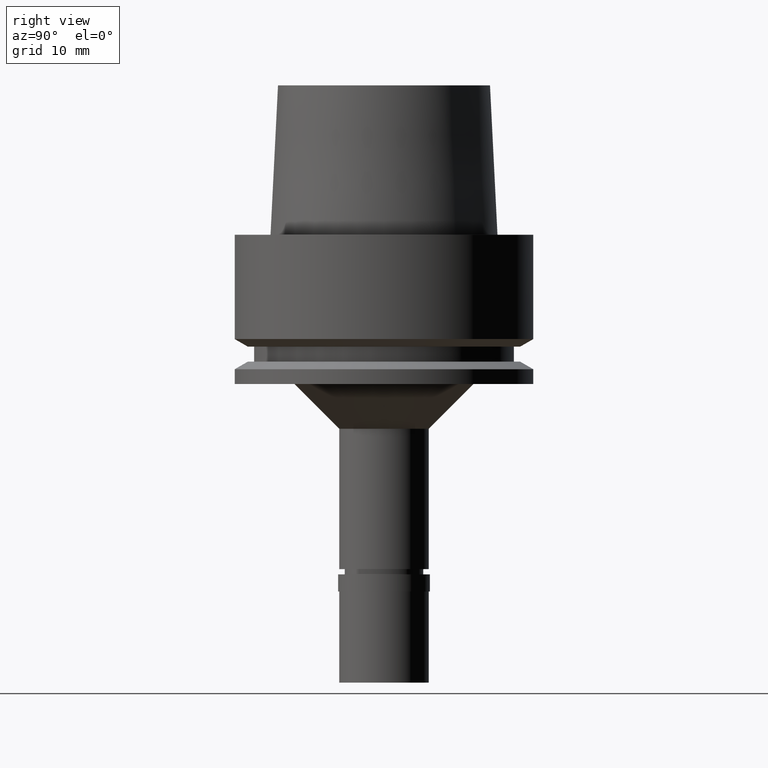
[diagram: clean part render]
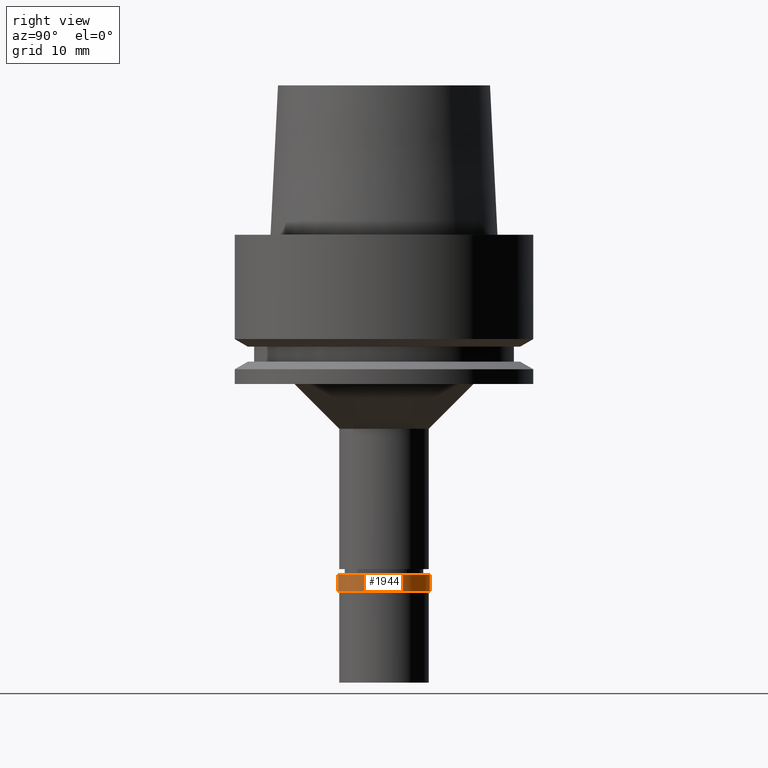
[diagram: same view with one face highlighted and labeled with its STEP entity id]
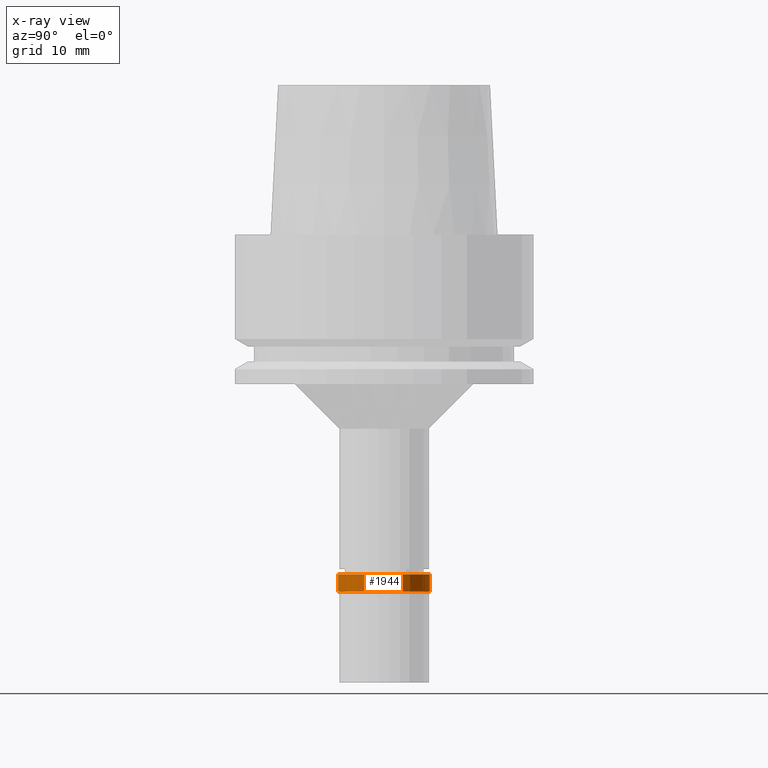
[diagram: x-ray of the same camera — body ghosted, the highlighted face saturated]
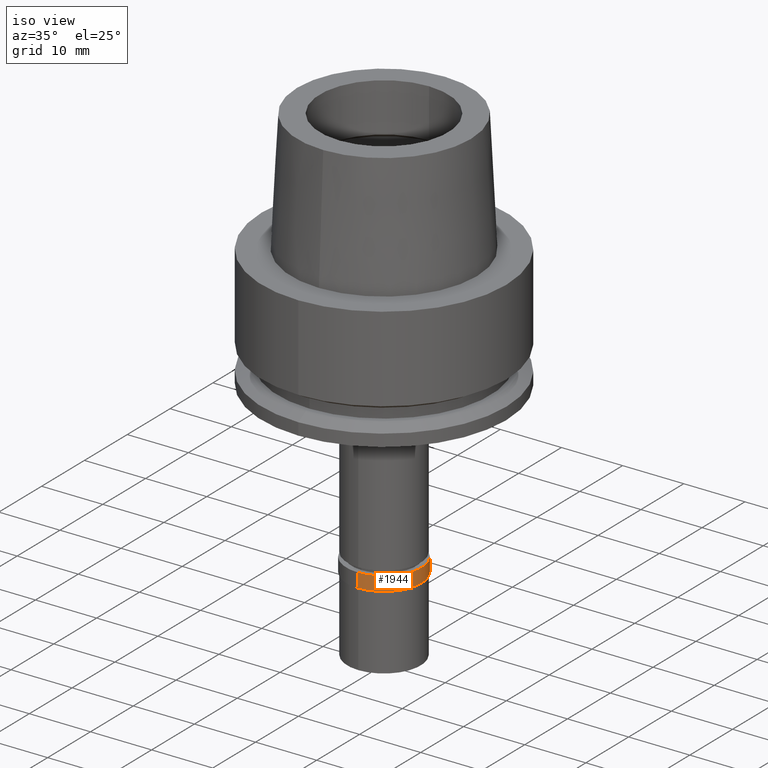
[diagram: same view with one face highlighted and labeled with its STEP entity id]
A machine part, right view. The second image highlights one B-rep face of the part: STEP entity #1944.
The next image is the same camera in x-ray: the body ghosted, the highlighted face saturated — about 0% of this face is hidden behind the body in this view.
A second angle (iso view) of the same face is appended — the face is thin or edge-on in the first view.
In plain terms, the highlighted cylindrical surface (partial cylindrical patch) has radius 6.15 mm, axis along (0, 0, 1).
Its self-contained STEP definition (entity closure, byte-faithful):
#38 = CARTESIAN_POINT ( 'NONE',  ( 0.0000000000000000000, 0.0000000000000000000, -2.299999999999999822 ) ) ;
#83 = ORIENTED_EDGE ( 'NONE', *, *, #1371, .T. ) ;
#102 = VECTOR ( 'NONE', #2620, 1000.000000000000000 ) ;
#126 = LINE ( 'NONE', #762, #102 ) ;
#191 = CARTESIAN_POINT ( 'NONE',  ( 0.0000000000000000000, -6.150000000000000355, 1.953992523340000041E-14 ) ) ;
#250 = ORIENTED_EDGE ( 'NONE', *, *, #2046, .F. ) ;
#310 = CARTESIAN_POINT ( 'NONE',  ( 0.0000000000000000000, 0.0000000000000000000, 1.953992523340000041E-14 ) ) ;
#335 = CIRCLE ( 'NONE', #670, 6.150000000000000355 ) ;
#361 = AXIS2_PLACEMENT_3D ( 'NONE', #38, #2341, #671 ) ;
#387 = FACE_OUTER_BOUND ( 'NONE', #2639, .T. ) ;
#545 = DIRECTION ( 'NONE',  ( 0.0000000000000000000, 0.0000000000000000000, 1.000000000000000000 ) ) ;
#560 = DIRECTION ( 'NONE',  ( 0.0000000000000000000, 1.000000000000000000, 0.0000000000000000000 ) ) ;
#615 = VECTOR ( 'NONE', #1459, 1000.000000000000000 ) ;
#670 = AXIS2_PLACEMENT_3D ( 'NONE', #310, #1468, #1056 ) ;
#671 = DIRECTION ( 'NONE',  ( 0.0000000000000000000, -1.000000000000000000, 0.0000000000000000000 ) ) ;
#704 = ORIENTED_EDGE ( 'NONE', *, *, #1236, .T. ) ;
#762 = CARTESIAN_POINT ( 'NONE',  ( 0.0000000000000000000, -6.150000000000000355, 0.0000000000000000000 ) ) ;
#769 = CARTESIAN_POINT ( 'NONE',  ( 0.0000000000000000000, -6.150000000000000355, -2.299999999999999822 ) ) ;
#964 = CYLINDRICAL_SURFACE ( 'NONE', #1531, 6.150000000000000355 ) ;
#1047 = CARTESIAN_POINT ( 'NONE',  ( 0.0000000000000000000, 6.150000000000000355, -2.299999999999999822 ) ) ;
#1056 = DIRECTION ( 'NONE',  ( 0.0000000000000000000, 1.000000000000000000, 0.0000000000000000000 ) ) ;
#1086 = CARTESIAN_POINT ( 'NONE',  ( 0.0000000000000000000, 6.150000000000000355, 0.0000000000000000000 ) ) ;
#1183 = CARTESIAN_POINT ( 'NONE',  ( 0.0000000000000000000, 0.0000000000000000000, -15.22500000000000142 ) ) ;
#1236 = EDGE_CURVE ( 'NONE', #2364, #2380, #126, .T. ) ;
#1371 = EDGE_CURVE ( 'NONE', #2481, #2364, #335, .T. ) ;
#1407 = CIRCLE ( 'NONE', #361, 6.150000000000000355 ) ;
#1459 = DIRECTION ( 'NONE',  ( 0.0000000000000000000, 0.0000000000000000000, -1.000000000000000000 ) ) ;
#1468 = DIRECTION ( 'NONE',  ( 0.0000000000000000000, 0.0000000000000000000, -1.000000000000000000 ) ) ;
#1531 = AXIS2_PLACEMENT_3D ( 'NONE', #1183, #545, #560 ) ;
#1839 = ORIENTED_EDGE ( 'NONE', *, *, #2204, .T. ) ;
#1944 = ADVANCED_FACE ( 'NONE', ( #387 ), #964, .T. ) ;
#2010 = VERTEX_POINT ( 'NONE', #1047 ) ;
#2046 = EDGE_CURVE ( 'NONE', #2481, #2010, #2501, .T. ) ;
#2204 = EDGE_CURVE ( 'NONE', #2380, #2010, #1407, .T. ) ;
#2341 = DIRECTION ( 'NONE',  ( 0.0000000000000000000, 0.0000000000000000000, 1.000000000000000000 ) ) ;
#2364 = VERTEX_POINT ( 'NONE', #191 ) ;
#2380 = VERTEX_POINT ( 'NONE', #769 ) ;
#2481 = VERTEX_POINT ( 'NONE', #2628 ) ;
#2501 = LINE ( 'NONE', #1086, #615 ) ;
#2620 = DIRECTION ( 'NONE',  ( 0.0000000000000000000, 0.0000000000000000000, -1.000000000000000000 ) ) ;
#2628 = CARTESIAN_POINT ( 'NONE',  ( 0.0000000000000000000, 6.150000000000000355, 1.953992523340000041E-14 ) ) ;
#2639 = EDGE_LOOP ( 'NONE', ( #83, #704, #1839, #250 ) ) ;